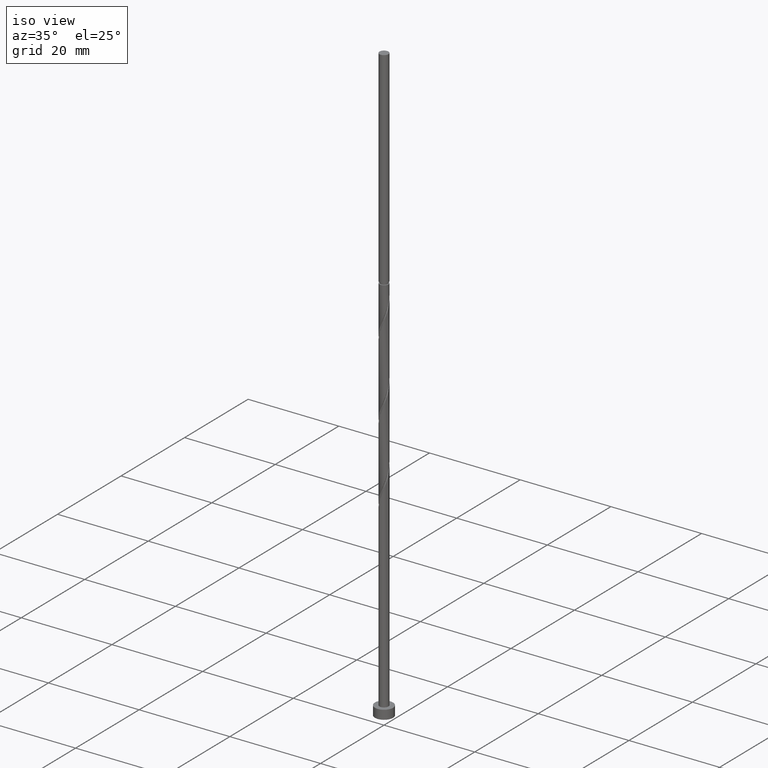
[diagram: clean part render]
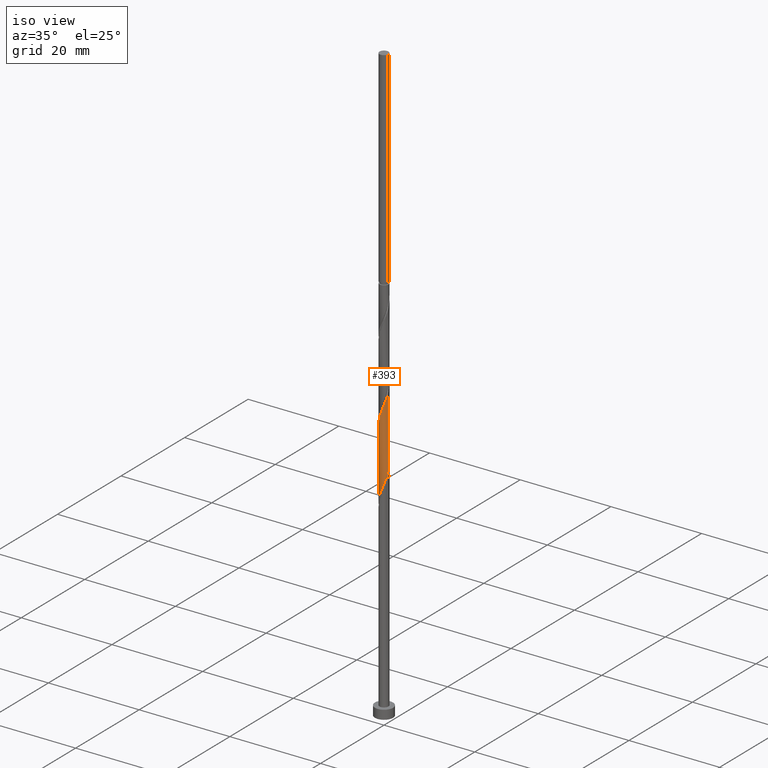
[diagram: same view with one face highlighted and labeled with its STEP entity id]
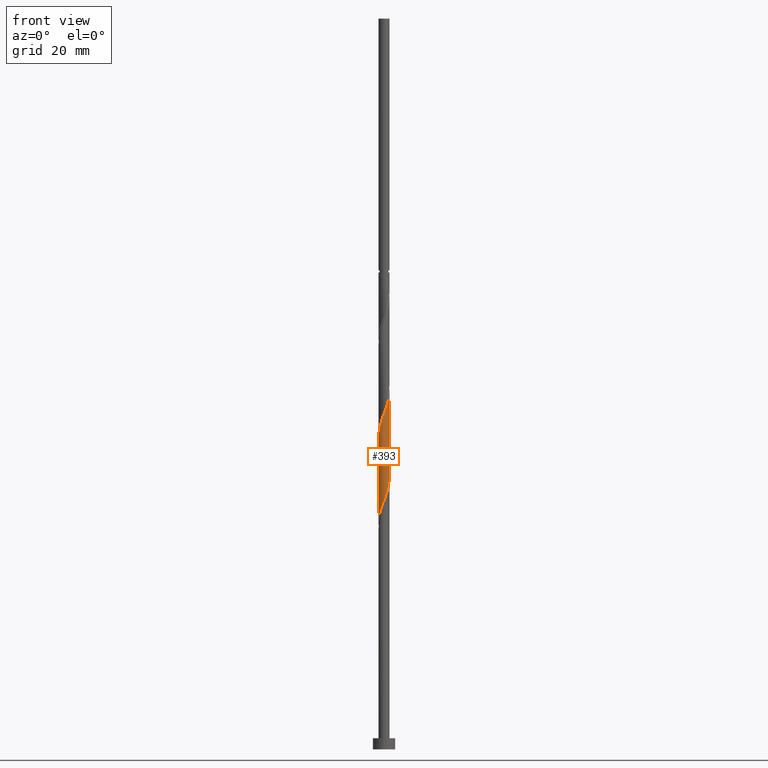
[diagram: same view with one face highlighted and labeled with its STEP entity id]
A machine part, iso view. The second image highlights one B-rep face of the part: STEP entity #393.
A second angle (front view) of the same face is appended — the face is thin or edge-on in the first view.
In plain terms, the highlighted cylindrical surface (edge-blend (fillet) strip) has radius 1 mm, axis along (-0, -0, -1).
Its self-contained STEP definition (entity closure, byte-faithful):
#3 = CARTESIAN_POINT ( 'NONE',  ( 1.000000000000000666, -0.1630543718204620351, 64.34112029931267784 ) ) ;
#32 = EDGE_LOOP ( 'NONE', ( #574, #286, #391, #697 ) ) ;
#42 = CARTESIAN_POINT ( 'NONE',  ( 1.000000000000000000, 1.224646799147353207E-16, 132.0000000000000000 ) ) ;
#68 = CARTESIAN_POINT ( 'NONE',  ( 0.9951180796480328938, -0.2020673444260079332, 48.63522803333368927 ) ) ;
#97 = CARTESIAN_POINT ( 'NONE',  ( 1.000000000000002220, 1.133494086745553801E-15, 49.16608292165579996 ) ) ;
#98 = CARTESIAN_POINT ( 'NONE',  ( 0.1989974874213205069, -0.9800000000000025357, 61.13522803333370348 ) ) ;
#101 = VERTEX_POINT ( 'NONE', #354 ) ;
#146 = VECTOR ( 'NONE', #1187, 1000.000000000000000 ) ;
#198 = CARTESIAN_POINT ( 'NONE',  ( -0.6324182898423036381, -0.7944421381061698151, 58.82041321851890103 ) ) ;
#210 = CARTESIAN_POINT ( 'NONE',  ( 0.3717979285156163827, -0.9449113738744305824, 61.59819099629667249 ) ) ;
#219 = CARTESIAN_POINT ( 'NONE',  ( -0.8659940141538795544, -0.5302316206861081849, 57.89448729259296300 ) ) ;
#279 = VERTEX_POINT ( 'NONE', #97 ) ;
#286 = ORIENTED_EDGE ( 'NONE', *, *, #530, .F. ) ;
#312 = CARTESIAN_POINT ( 'NONE',  ( 1.000000000000001998, -0.01290167433201744839, 49.13206554772343537 ) ) ;
#316 = CARTESIAN_POINT ( 'NONE',  ( 0.5221762109439075372, -0.8528376192009042844, 62.06115395925963441 ) ) ;
#321 = CARTESIAN_POINT ( 'NONE',  ( -0.02619704632702489142, -1.015088626125574711, 44.93152432962999399 ) ) ;
#322 = CARTESIAN_POINT ( 'NONE',  ( -0.3225635862758335914, -0.9628312089533862528, 59.74633914444480354 ) ) ;
#354 = CARTESIAN_POINT ( 'NONE',  ( -1.000000000000002220, -1.492029283871000850E-15, 40.83274958832245716 ) ) ;
#391 = ORIENTED_EDGE ( 'NONE', *, *, #1260, .T. ) ;
#393 = ADVANCED_FACE ( 'NONE', ( #520 ), #555, .T. ) ;
#439 = CARTESIAN_POINT ( 'NONE',  ( 0.9482036394194119922, -0.3176631206038637023, 63.91300581111147494 ) ) ;
#449 = CARTESIAN_POINT ( 'NONE',  ( -0.9951180796480326718, -0.2020673444260077389, 56.96856136666703208 ) ) ;
#455 = CARTESIAN_POINT ( 'NONE',  ( 0.9996671490029767071, -0.02579905432887409297, 49.09819099629667249 ) ) ;
#520 = FACE_OUTER_BOUND ( 'NONE', #32, .T. ) ;
#530 = EDGE_CURVE ( 'NONE', #1160, #1229, #1394, .T. ) ;
#537 = CARTESIAN_POINT ( 'NONE',  ( 0.7492061519980914852, -0.6623368793961394996, 47.24633914444481064 ) ) ;
#554 = CARTESIAN_POINT ( 'NONE',  ( 1.000000000000002220, 1.133494086745553801E-15, 49.16608292165579996 ) ) ;
#555 = CYLINDRICAL_SURFACE ( 'NONE', #765, 1.000000000000000000 ) ;
#570 = CARTESIAN_POINT ( 'NONE',  ( 0.6725544933721986363, -0.7607638645273789857, 62.52411692222259632 ) ) ;
#572 = CARTESIAN_POINT ( 'NONE',  ( -1.000000000000000888, -0.1630543718204607029, 41.26266910068809324 ) ) ;
#574 = ORIENTED_EDGE ( 'NONE', *, *, #926, .F. ) ;
#590 = CARTESIAN_POINT ( 'NONE',  ( -1.000000000000001776, -0.01290167433202120059, 56.47172385227732150 ) ) ;
#603 = VECTOR ( 'NONE', #657, 1000.000000000000000 ) ;
#657 = DIRECTION ( 'NONE',  ( -0.000000000000000000, -0.000000000000000000, -1.000000000000000000 ) ) ;
#665 = CARTESIAN_POINT ( 'NONE',  ( 1.000000000000001554, -1.577928341515621780E-15, 64.77103981167827840 ) ) ;
#676 = CARTESIAN_POINT ( 'NONE',  ( -0.1989974874213207845, -0.9800000000000025357, 44.46856136666703208 ) ) ;
#692 = CARTESIAN_POINT ( 'NONE',  ( 0.8921910604809037970, -0.4848570054394663043, 63.45004284814852014 ) ) ;
#697 = ORIENTED_EDGE ( 'NONE', *, *, #835, .F. ) ;
#765 = AXIS2_PLACEMENT_3D ( 'NONE', #879, #1014, #1222 ) ;
#777 = CARTESIAN_POINT ( 'NONE',  ( 0.9305560469009561686, -0.3661494825560581146, 48.17226507037076288 ) ) ;
#780 = CARTESIAN_POINT ( 'NONE',  ( 1.000000000000001554, -1.577928341515621780E-15, 64.77103981167827840 ) ) ;
#802 = CARTESIAN_POINT ( 'NONE',  ( -1.000000000000001776, -1.217525773571817283E-15, 56.43770647834497112 ) ) ;
#809 = CARTESIAN_POINT ( 'NONE',  ( -0.9305560469009558355, -0.3661494825560580035, 57.43152432962998688 ) ) ;
#824 = CARTESIAN_POINT ( 'NONE',  ( -0.9482036394194125473, -0.3176631206038630917, 41.69078358888926061 ) ) ;
#835 = EDGE_CURVE ( 'NONE', #279, #101, #864, .T. ) ;
#864 =( BOUNDED_CURVE ( )  B_SPLINE_CURVE ( 2, ( #554, #312, #455, #68, #777, #1246, #537, #902, #998, #1354, #1031, #321, #676, #1474, #1435, #1481, #1059, #1295, #824, #572, #1389 ),
 .UNSPECIFIED., .F., .T. ) 
 B_SPLINE_CURVE_WITH_KNOTS ( ( 3, 2, 2, 2, 2, 2, 2, 2, 2, 2, 3 ),
 ( 0.8045248053855290626, 0.8055555555555555802, 0.8194444444444444198, 0.8333333333333333703, 0.8472222222222222099, 0.8611111111111111605, 0.8750000000000000000, 0.8888888888888888395, 0.9027777777777777901, 0.9166666666666666297, 0.9295248053855290626 ),
 .UNSPECIFIED. ) 
 CURVE ( )  GEOMETRIC_REPRESENTATION_ITEM ( )  RATIONAL_B_SPLINE_CURVE ( ( 0.9071930855141306926, 0.9080659294509783042, 0.9090909090909183865, 0.8952797754656529605, 0.9090909090909183865, 0.8952797754656529605, 0.9090909090909183865, 0.8952797754656529605, 0.9090909090909183865, 0.8952797754656529605, 0.9090909090909183865, 0.8952797754656529605, 0.9090909090909183865, 0.8952797754656529605, 0.9090909090909183865, 0.8952797754656529605, 0.9090909090909183865, 0.8952797754656529605, 0.9090909090909183865, 0.8963047551055930429, 0.9071930855141306926 ) ) 
 REPRESENTATION_ITEM ( '' )  );
#879 = CARTESIAN_POINT ( 'NONE',  ( 0.000000000000000000, 0.000000000000000000, 132.0000000000000000 ) ) ;
#902 = CARTESIAN_POINT ( 'NONE',  ( 0.6324182898423037491, -0.7944421381061700371, 46.78337618148184873 ) ) ;
#907 = CARTESIAN_POINT ( 'NONE',  ( -0.7492061519980917073, -0.6623368793961389445, 58.35745025555593202 ) ) ;
#914 = CARTESIAN_POINT ( 'NONE',  ( -0.9996671490029763740, -0.02579905432887370093, 56.50559840370407727 ) ) ;
#926 = EDGE_CURVE ( 'NONE', #1229, #279, #1300, .T. ) ;
#998 = CARTESIAN_POINT ( 'NONE',  ( 0.4774909380590686703, -0.8786366735297782560, 46.32041321851887261 ) ) ;
#1014 = DIRECTION ( 'NONE',  ( -0.000000000000000000, -0.000000000000000000, -1.000000000000000000 ) ) ;
#1031 = CARTESIAN_POINT ( 'NONE',  ( 0.1481832699744045356, -0.9889599175394805375, 45.39448729259297011 ) ) ;
#1057 = CARTESIAN_POINT ( 'NONE',  ( -0.4774909380590687258, -0.8786366735297779229, 59.28337618148184873 ) ) ;
#1059 = CARTESIAN_POINT ( 'NONE',  ( -0.7823727769265516052, -0.6228104349834227005, 42.61670951481518443 ) ) ;
#1160 = VERTEX_POINT ( 'NONE', #1331 ) ;
#1170 = CARTESIAN_POINT ( 'NONE',  ( 0.02619704632702417671, -1.015088626125574489, 60.67226507037073446 ) ) ;
#1187 = DIRECTION ( 'NONE',  ( -0.000000000000000000, -0.000000000000000000, -1.000000000000000000 ) ) ;
#1222 = DIRECTION ( 'NONE',  ( -1.000000000000000000, 0.000000000000000000, 0.000000000000000000 ) ) ;
#1229 = VERTEX_POINT ( 'NONE', #665 ) ;
#1246 = CARTESIAN_POINT ( 'NONE',  ( 0.8659940141538792213, -0.5302316206861090730, 47.70930210740777255 ) ) ;
#1257 = CARTESIAN_POINT ( 'NONE',  ( -0.1481832699744047299, -0.9889599175394803154, 60.20930210740778676 ) ) ;
#1260 = EDGE_CURVE ( 'NONE', #1160, #101, #1353, .T. ) ;
#1295 = CARTESIAN_POINT ( 'NONE',  ( -0.8921910604809041301, -0.4848570054394663043, 42.15374655185221542 ) ) ;
#1300 = LINE ( 'NONE', #42, #146 ) ;
#1331 = CARTESIAN_POINT ( 'NONE',  ( -1.000000000000001776, -1.217525773571817085E-15, 56.43770647834496401 ) ) ;
#1353 = LINE ( 'NONE', #1433, #603 ) ;
#1354 = CARTESIAN_POINT ( 'NONE',  ( 0.3225635862758333139, -0.9628312089533865858, 45.85745025555591070 ) ) ;
#1361 = CARTESIAN_POINT ( 'NONE',  ( 0.7823727769265514942, -0.6228104349834223674, 62.98707988518555112 ) ) ;
#1389 = CARTESIAN_POINT ( 'NONE',  ( -1.000000000000002220, -1.492029283871000850E-15, 40.83274958832245716 ) ) ;
#1394 =( BOUNDED_CURVE ( )  B_SPLINE_CURVE ( 2, ( #802, #590, #914, #449, #809, #219, #907, #198, #1057, #322, #1257, #1170, #98, #210, #316, #570, #1361, #692, #439, #3, #780 ),
 .UNSPECIFIED., .F., .T. ) 
 B_SPLINE_CURVE_WITH_KNOTS ( ( 3, 2, 2, 2, 2, 2, 2, 2, 2, 2, 3 ),
 ( 0.3045248053855293957, 0.3055555555555555802, 0.3194444444444444198, 0.3333333333333333703, 0.3472222222222222099, 0.3611111111111111605, 0.3750000000000000000, 0.3888888888888888395, 0.4027777777777777901, 0.4166666666666666297, 0.4295248053855290071 ),
 .UNSPECIFIED. ) 
 CURVE ( )  GEOMETRIC_REPRESENTATION_ITEM ( )  RATIONAL_B_SPLINE_CURVE ( ( 0.9071930855141407957, 0.9080659294509882962, 0.9090909090909280454, 0.8952797754656623974, 0.9090909090909280454, 0.8952797754656623974, 0.9090909090909280454, 0.8952797754656623974, 0.9090909090909280454, 0.8952797754656623974, 0.9090909090909280454, 0.8952797754656623974, 0.9090909090909280454, 0.8952797754656623974, 0.9090909090909280454, 0.8952797754656623974, 0.9090909090909280454, 0.8952797754656623974, 0.9090909090909280454, 0.8963047551056024798, 0.9071930855141401295 ) ) 
 REPRESENTATION_ITEM ( '' )  );
#1433 = CARTESIAN_POINT ( 'NONE',  ( -1.000000000000000000, 0.000000000000000000, 132.0000000000000000 ) ) ;
#1435 = CARTESIAN_POINT ( 'NONE',  ( -0.5221762109439079813, -0.8528376192009045065, 43.54263544074112247 ) ) ;
#1474 = CARTESIAN_POINT ( 'NONE',  ( -0.3717979285156171043, -0.9449113738744301383, 44.00559840370407017 ) ) ;
#1481 = CARTESIAN_POINT ( 'NONE',  ( -0.6725544933721987473, -0.7607638645273786526, 43.07967247777814634 ) ) ;